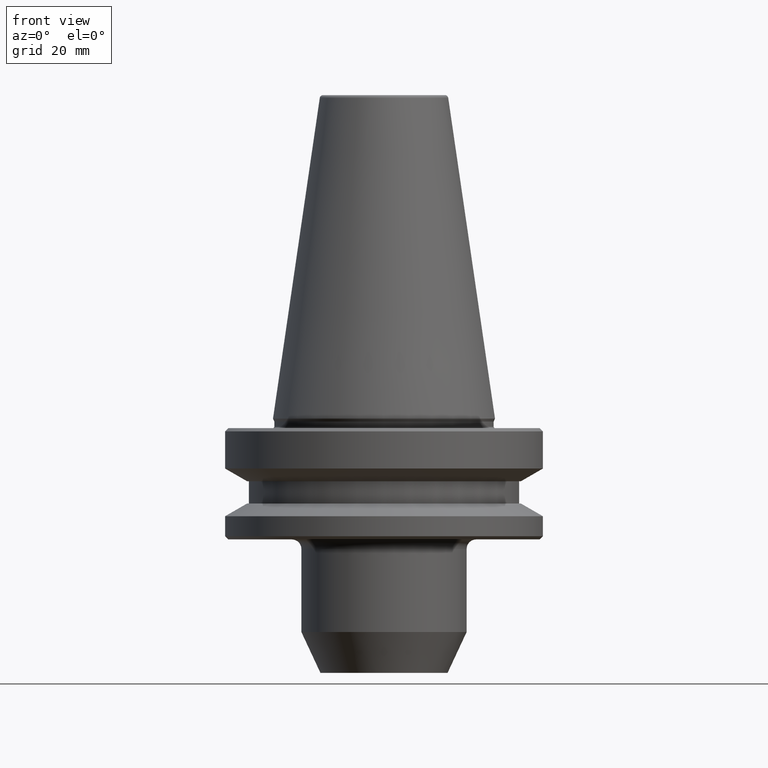
[diagram: clean part render]
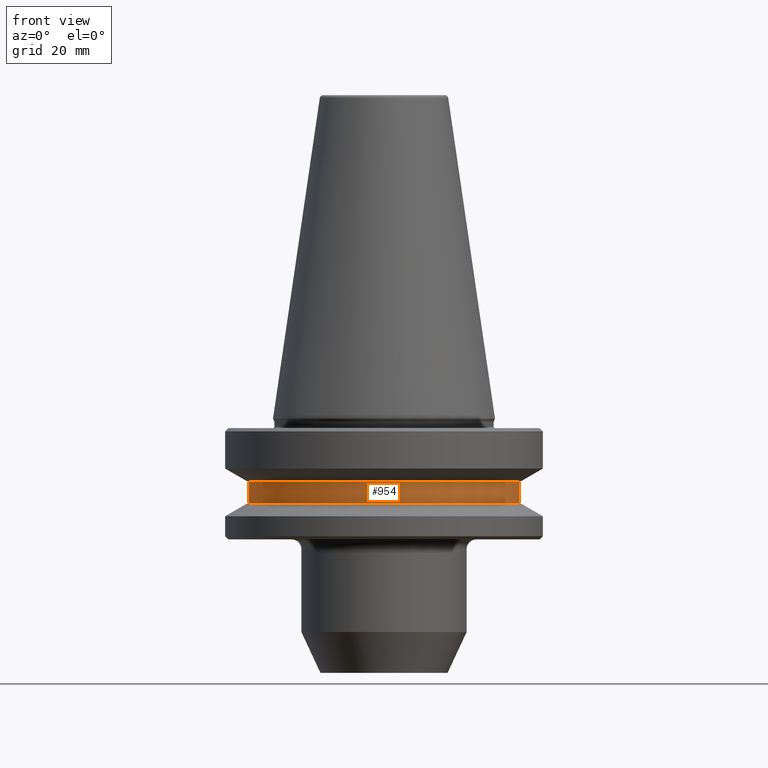
[diagram: same view with one face highlighted and labeled with its STEP entity id]
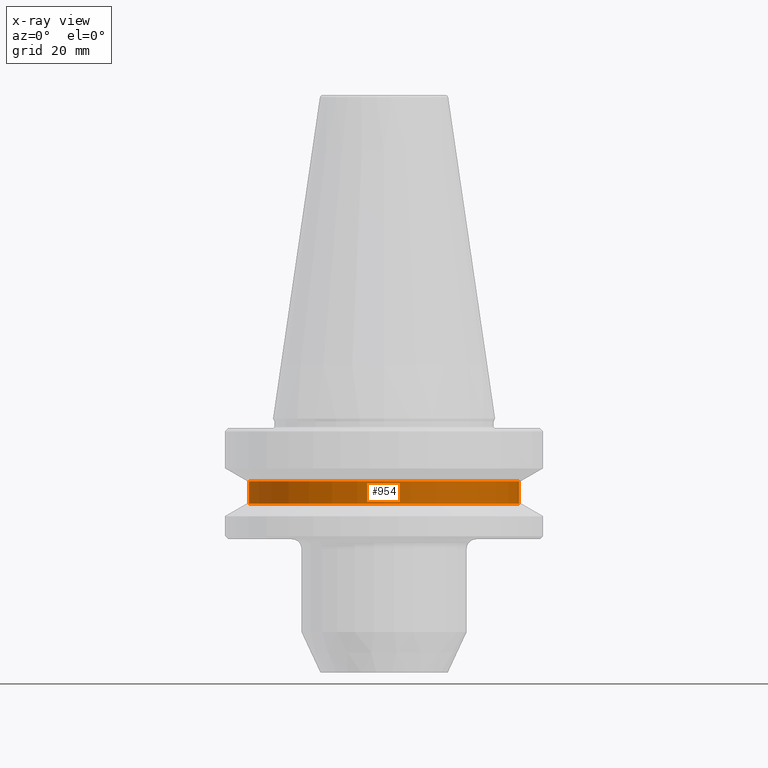
[diagram: x-ray of the same camera — body ghosted, the highlighted face saturated]
A machine part, front view. The second image highlights one B-rep face of the part: STEP entity #954.
The next image is the same camera in x-ray: the body ghosted, the highlighted face saturated — about 0% of this face is hidden behind the body in this view.
In plain terms, the highlighted cylindrical surface (partial cylindrical patch) has radius 42.5 mm, axis along (-0, -0, 1).
Its self-contained STEP definition (entity closure, byte-faithful):
#43 = CARTESIAN_POINT ( 'NONE',  ( -42.49999999999931800, 5.204748896376167300E-015, -19.70000000000073100 ) ) ;
#83 = FACE_OUTER_BOUND ( 'NONE', #230, .T. ) ;
#87 = AXIS2_PLACEMENT_3D ( 'NONE', #374, #776, #873 ) ;
#90 = EDGE_CURVE ( 'NONE', #324, #865, #172, .T. ) ;
#131 = VECTOR ( 'NONE', #366, 1000.000000000000000 ) ;
#144 = VERTEX_POINT ( 'NONE', #43 ) ;
#146 = LINE ( 'NONE', #478, #351 ) ;
#158 = VERTEX_POINT ( 'NONE', #763 ) ;
#172 = CIRCLE ( 'NONE', #87, 42.49999999999931800 ) ;
#191 = CARTESIAN_POINT ( 'NONE',  ( 0.0000000000000000000, 0.0000000000000000000, 105.9391094017344400 ) ) ;
#221 = CARTESIAN_POINT ( 'NONE',  ( 42.49999999999931800, 0.0000000000000000000, -26.70000000000073800 ) ) ;
#230 = EDGE_LOOP ( 'NONE', ( #568, #356, #313, #778 ) ) ;
#257 = DIRECTION ( 'NONE',  ( 1.000000000000000000, 0.0000000000000000000, 0.0000000000000000000 ) ) ;
#313 = ORIENTED_EDGE ( 'NONE', *, *, #686, .T. ) ;
#324 = VERTEX_POINT ( 'NONE', #690 ) ;
#351 = VECTOR ( 'NONE', #993, 1000.000000000000000 ) ;
#356 = ORIENTED_EDGE ( 'NONE', *, *, #90, .T. ) ;
#362 = LINE ( 'NONE', #784, #131 ) ;
#366 = DIRECTION ( 'NONE',  ( -0.0000000000000000000, -0.0000000000000000000, 1.000000000000000000 ) ) ;
#374 = CARTESIAN_POINT ( 'NONE',  ( 0.0000000000000000000, 0.0000000000000000000, -26.70000000000073800 ) ) ;
#394 = CARTESIAN_POINT ( 'NONE',  ( 0.0000000000000000000, 0.0000000000000000000, -19.70000000000073100 ) ) ;
#402 = EDGE_CURVE ( 'NONE', #324, #144, #146, .T. ) ;
#431 = DIRECTION ( 'NONE',  ( 1.000000000000000000, 0.0000000000000000000, 0.0000000000000000000 ) ) ;
#470 = CIRCLE ( 'NONE', #896, 42.49999999999931800 ) ;
#478 = CARTESIAN_POINT ( 'NONE',  ( -42.49999999999931800, 5.204748896376167300E-015, 105.9391094017344400 ) ) ;
#536 = EDGE_CURVE ( 'NONE', #144, #158, #470, .T. ) ;
#552 = AXIS2_PLACEMENT_3D ( 'NONE', #191, #722, #257 ) ;
#568 = ORIENTED_EDGE ( 'NONE', *, *, #402, .F. ) ;
#636 = CYLINDRICAL_SURFACE ( 'NONE', #552, 42.49999999999931800 ) ;
#686 = EDGE_CURVE ( 'NONE', #865, #158, #362, .T. ) ;
#690 = CARTESIAN_POINT ( 'NONE',  ( -42.49999999999931800, 5.204748896376167300E-015, -26.70000000000073800 ) ) ;
#722 = DIRECTION ( 'NONE',  ( -0.0000000000000000000, -0.0000000000000000000, 1.000000000000000000 ) ) ;
#750 = DIRECTION ( 'NONE',  ( -0.0000000000000000000, -0.0000000000000000000, 1.000000000000000000 ) ) ;
#763 = CARTESIAN_POINT ( 'NONE',  ( 42.49999999999931800, 0.0000000000000000000, -19.70000000000073100 ) ) ;
#776 = DIRECTION ( 'NONE',  ( -0.0000000000000000000, -0.0000000000000000000, 1.000000000000000000 ) ) ;
#778 = ORIENTED_EDGE ( 'NONE', *, *, #536, .F. ) ;
#784 = CARTESIAN_POINT ( 'NONE',  ( 42.49999999999931800, 0.0000000000000000000, 105.9391094017344400 ) ) ;
#865 = VERTEX_POINT ( 'NONE', #221 ) ;
#873 = DIRECTION ( 'NONE',  ( 1.000000000000000000, 0.0000000000000000000, 0.0000000000000000000 ) ) ;
#896 = AXIS2_PLACEMENT_3D ( 'NONE', #394, #750, #431 ) ;
#954 = ADVANCED_FACE ( 'NONE', ( #83 ), #636, .T. ) ;
#993 = DIRECTION ( 'NONE',  ( -0.0000000000000000000, -0.0000000000000000000, 1.000000000000000000 ) ) ;